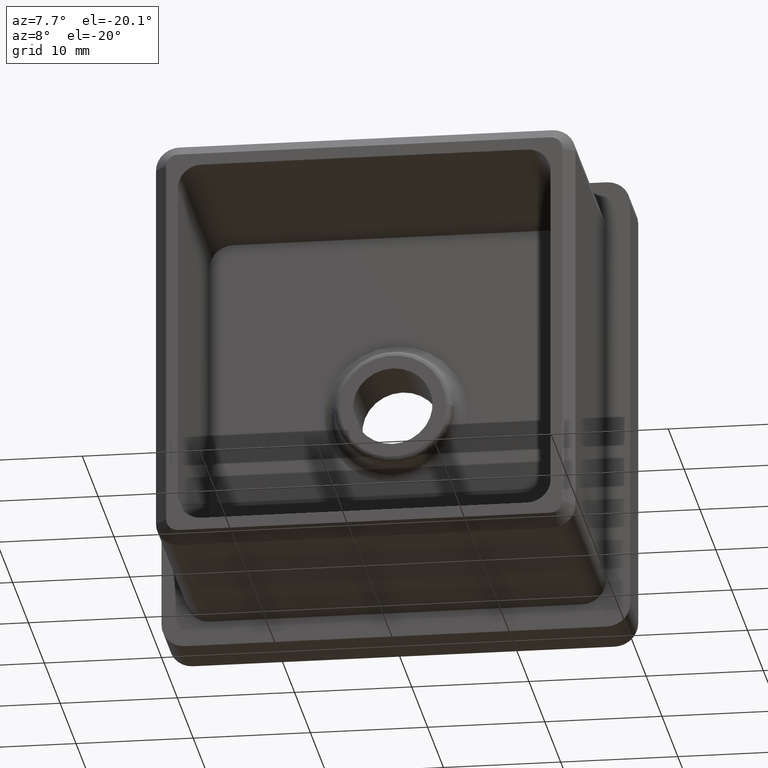
[diagram: clean part render]
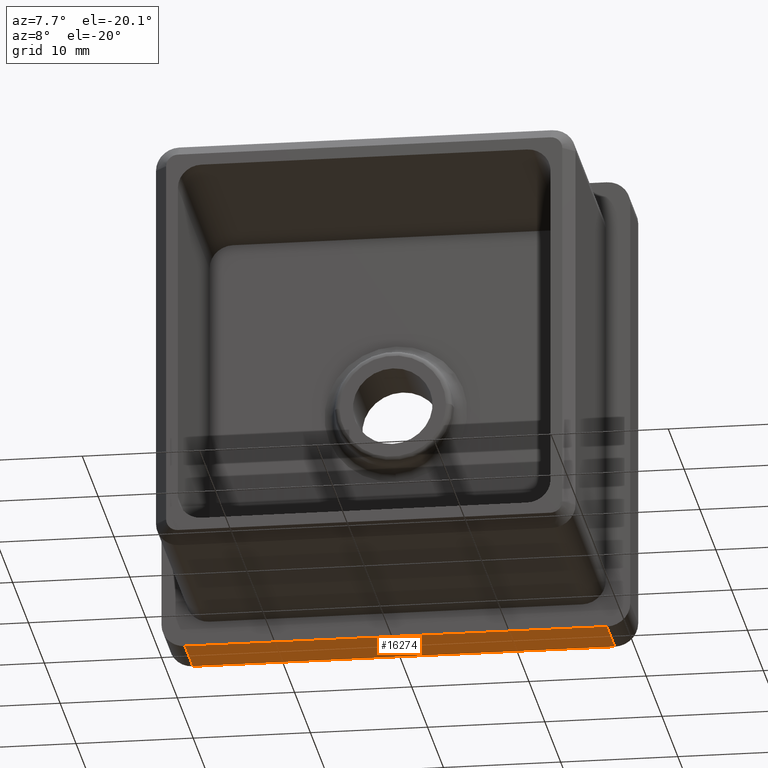
[diagram: same view with one face highlighted and labeled with its STEP entity id]
A machine part, auxiliary view. The second image highlights one B-rep face of the part: STEP entity #16274.
In plain terms, the highlighted planar face has unit normal (0, 0, 1).
Its self-contained STEP definition (entity closure, byte-faithful):
#461 = DIRECTION ( 'NONE',  ( 1.000000000000000000, 0.0000000000000000000, -0.0000000000000000000 ) ) ;
#1453 = VECTOR ( 'NONE', #13151, 1000.000000000000000 ) ;
#1814 = CARTESIAN_POINT ( 'NONE',  ( -18.00000000000000400, 5.000000000000000000, -19.99999999999999600 ) ) ;
#2393 = VERTEX_POINT ( 'NONE', #7047 ) ;
#2770 = FACE_OUTER_BOUND ( 'NONE', #8907, .T. ) ;
#3346 = PLANE ( 'NONE',  #8443 ) ;
#3418 = EDGE_CURVE ( 'NONE', #14875, #12615, #11623, .T. ) ;
#4169 = DIRECTION ( 'NONE',  ( -1.000000000000000000, -0.0000000000000000000, -0.0000000000000000000 ) ) ;
#5101 = DIRECTION ( 'NONE',  ( -1.000000000000000000, -0.0000000000000000000, -0.0000000000000000000 ) ) ;
#5789 = CARTESIAN_POINT ( 'NONE',  ( -18.00000000000000400, 0.0000000000000000000, -19.99999999999999600 ) ) ;
#6168 = CARTESIAN_POINT ( 'NONE',  ( -20.00000000000000400, 5.000000000000000000, -19.99999999999999600 ) ) ;
#6369 = EDGE_CURVE ( 'NONE', #2393, #8936, #13922, .T. ) ;
#6965 = LINE ( 'NONE', #14465, #1453 ) ;
#7038 = ORIENTED_EDGE ( 'NONE', *, *, #12583, .T. ) ;
#7047 = CARTESIAN_POINT ( 'NONE',  ( 17.99999999999999600, 5.000000000000000000, -19.99999999999999600 ) ) ;
#7860 = CARTESIAN_POINT ( 'NONE',  ( -20.00000000000000400, 0.0000000000000000000, -19.99999999999999600 ) ) ;
#8298 = ORIENTED_EDGE ( 'NONE', *, *, #3418, .T. ) ;
#8324 = ORIENTED_EDGE ( 'NONE', *, *, #6369, .F. ) ;
#8443 = AXIS2_PLACEMENT_3D ( 'NONE', #6168, #9016, #461 ) ;
#8480 = VECTOR ( 'NONE', #5101, 1000.000000000000000 ) ;
#8907 = EDGE_LOOP ( 'NONE', ( #8324, #13727, #8298, #7038 ) ) ;
#8936 = VERTEX_POINT ( 'NONE', #1814 ) ;
#9016 = DIRECTION ( 'NONE',  ( 0.0000000000000000000, 0.0000000000000000000, 1.000000000000000000 ) ) ;
#9154 = CARTESIAN_POINT ( 'NONE',  ( 17.99999999999999600, 0.0000000000000000000, -19.99999999999999600 ) ) ;
#10135 = VECTOR ( 'NONE', #4169, 1000.000000000000000 ) ;
#10548 = VECTOR ( 'NONE', #17064, 1000.000000000000000 ) ;
#11623 = LINE ( 'NONE', #7860, #8480 ) ;
#12583 = EDGE_CURVE ( 'NONE', #12615, #8936, #14347, .T. ) ;
#12615 = VERTEX_POINT ( 'NONE', #5789 ) ;
#12643 = EDGE_CURVE ( 'NONE', #2393, #14875, #6965, .T. ) ;
#12849 = CARTESIAN_POINT ( 'NONE',  ( -20.00000000000000400, 5.000000000000000000, -19.99999999999999600 ) ) ;
#13151 = DIRECTION ( 'NONE',  ( 0.0000000000000000000, -1.000000000000000000, 0.0000000000000000000 ) ) ;
#13727 = ORIENTED_EDGE ( 'NONE', *, *, #12643, .T. ) ;
#13922 = LINE ( 'NONE', #12849, #10135 ) ;
#14075 = CARTESIAN_POINT ( 'NONE',  ( -18.00000000000000400, 5.000000000000000000, -19.99999999999999600 ) ) ;
#14347 = LINE ( 'NONE', #14075, #10548 ) ;
#14465 = CARTESIAN_POINT ( 'NONE',  ( 17.99999999999999600, 5.000000000000000000, -19.99999999999999600 ) ) ;
#14875 = VERTEX_POINT ( 'NONE', #9154 ) ;
#16274 = ADVANCED_FACE ( 'NONE', ( #2770 ), #3346, .F. ) ;
#17064 = DIRECTION ( 'NONE',  ( -0.0000000000000000000, 1.000000000000000000, -0.0000000000000000000 ) ) ;